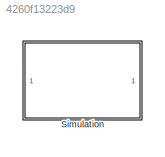
MODEL slx_4260f13223d9
KIND model
CONFIG AbsTol = auto
CONFIG EnableMultiTasking = off
CONFIG FixedStep = auto
CONFIG MaxStep = auto
CONFIG MinStep = auto
CONFIG RelTol = 1e-3
CONFIG SampleTimeConstraint = Unconstrained
CONFIG Solver = VariableStepAuto
CONFIG SolverName = VariableStepAuto
CONFIG StartTime = 0.0
CONFIG StopTime = 10.0
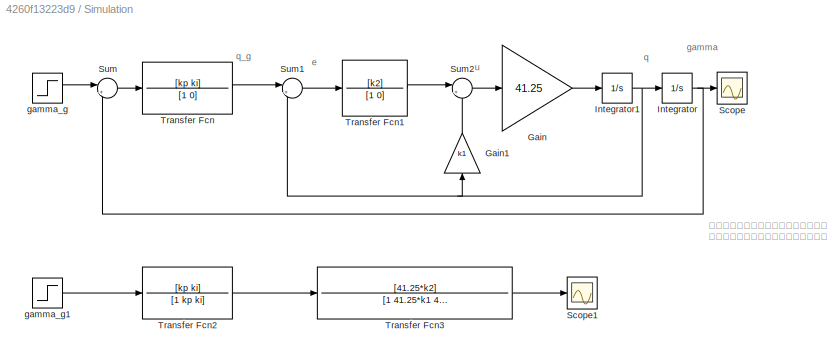
BLOCK [SubSystem] Simulation
  Ports = []
  RequestExecContextInheritance = off
  Variant = off
BLOCK [Gain] Simulation/Gain
  Gain = 41.25
  OutDataTypeStr = Inherit: Inherit via internal rule
  ParamDataTypeStr = Inherit: Inherit via internal rule
  SaturateOnIntegerOverflow = off
BLOCK [Gain] Simulation/Gain1
  Gain = k1
  OutDataTypeStr = Inherit: Inherit via internal rule
  ParamDataTypeStr = Inherit: Inherit via internal rule
  SaturateOnIntegerOverflow = off
BLOCK [Integrator] Simulation/Integrator
  Ports = [1, 1]
BLOCK [Integrator] Simulation/Integrator1
  Ports = [1, 1]
BLOCK [Scope] Simulation/Scope
  NumInputPorts = 1
  Ports = [1]
  ScopeSpecificationString = Simulink.scopes.TimeScopeBlockCfg('CurrentConfiguration', extmgr.ConfigurationSet(extmgr.Configuration('Core','General UI',true),extmgr.Configuration('Core','Source UI',true),extmgr.Configuration('Sources','WiredSimulink',true),extmgr.Configuration('Visuals','Time Domain',true,'SerializedDisplays',{struct('MinYLimReal','-0.2087','MaxYLimReal','1.87832','YLabelReal','','MinYLimMag','0.00000','MaxYL...<+1360ch>
BLOCK [Scope] Simulation/Scope1
  NumInputPorts = 1
  Ports = [1]
  ScopeSpecificationString = Simulink.scopes.TimeScopeBlockCfg('CurrentConfiguration', extmgr.ConfigurationSet(extmgr.Configuration('Core','General UI',true),extmgr.Configuration('Core','Source UI',true),extmgr.Configuration('Sources','WiredSimulink',true,'DataLoggingVariableName','ScopeData1'),extmgr.Configuration('Visuals','Time Domain',true,'SerializedDisplays',{struct('MinYLimReal','-0.15491','MaxYLimReal','1.39422','YLab...<+1401ch>
BLOCK [Sum] Simulation/Sum
  IconShape = round
  InputSameDT = off
  Inputs = |+-
  OutDataTypeStr = Inherit: Inherit via internal rule
  Ports = [2, 1]
  SaturateOnIntegerOverflow = off
BLOCK [Sum] Simulation/Sum1
  IconShape = round
  InputSameDT = off
  Inputs = |+-
  OutDataTypeStr = Inherit: Inherit via internal rule
  Ports = [2, 1]
  SaturateOnIntegerOverflow = off
BLOCK [Sum] Simulation/Sum2
  IconShape = round
  InputSameDT = off
  Inputs = |+-
  OutDataTypeStr = Inherit: Inherit via internal rule
  Ports = [2, 1]
  SaturateOnIntegerOverflow = off
BLOCK [TransferFcn] Simulation/Transfer Fcn
  Denominator = [1 0]
  Numerator = [kp ki]
BLOCK [TransferFcn] Simulation/Transfer Fcn1
  Denominator = [1 0]
  Numerator = [k2]
BLOCK [TransferFcn] Simulation/Transfer Fcn2
  Denominator = [1 kp ki]
  Numerator = [kp ki]
BLOCK [TransferFcn] Simulation/Transfer Fcn3
  Denominator = [1 41.25*k1 41.25*k2]
  Numerator = [41.25*k2]
BLOCK [Step] Simulation/gamma_g
  SampleTime = 0
  Time = 0
BLOCK [Step] Simulation/gamma_g1
  SampleTime = 0
  Time = 0
ANNOTATION Simulation: e
ANNOTATION Simulation: gamma
ANNOTATION Simulation: q
ANNOTATION Simulation: q_g
ANNOTATION Simulation: u
ANNOTATION Simulation: 惊了，这俩结果竟然差的还有点大啊。 下面的直接推出传递函数效果更好！！
LINE Simulation/Gain1:1 -> Simulation/Sum2:2
LINE Simulation/Gain:1 -> Simulation/Integrator1:1
NET Simulation/Integrator1:1 -> Simulation/Gain1:1, Simulation/Integrator:1, Simulation/Sum1:2
NET Simulation/Integrator:1 -> Simulation/Scope:1, Simulation/Sum:2
LINE Simulation/Sum1:1 -> Simulation/Transfer Fcn1:1
LINE Simulation/Sum2:1 -> Simulation/Gain:1
LINE Simulation/Sum:1 -> Simulation/Transfer Fcn:1
LINE Simulation/Transfer Fcn1:1 -> Simulation/Sum2:1
LINE Simulation/Transfer Fcn2:1 -> Simulation/Transfer Fcn3:1
LINE Simulation/Transfer Fcn3:1 -> Simulation/Scope1:1
LINE Simulation/Transfer Fcn:1 -> Simulation/Sum1:1
LINE Simulation/gamma_g1:1 -> Simulation/Transfer Fcn2:1
LINE Simulation/gamma_g:1 -> Simulation/Sum:1
note: NET lines group one-source signal fan-out (src -> all destinations, sorted); 1:1 wires keep LINE
